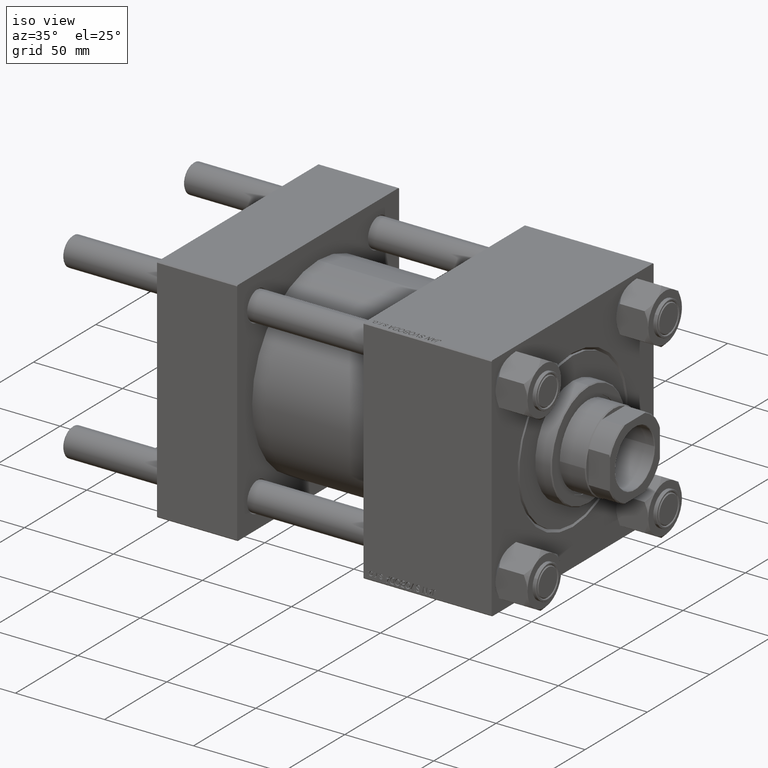
[diagram: clean part render]
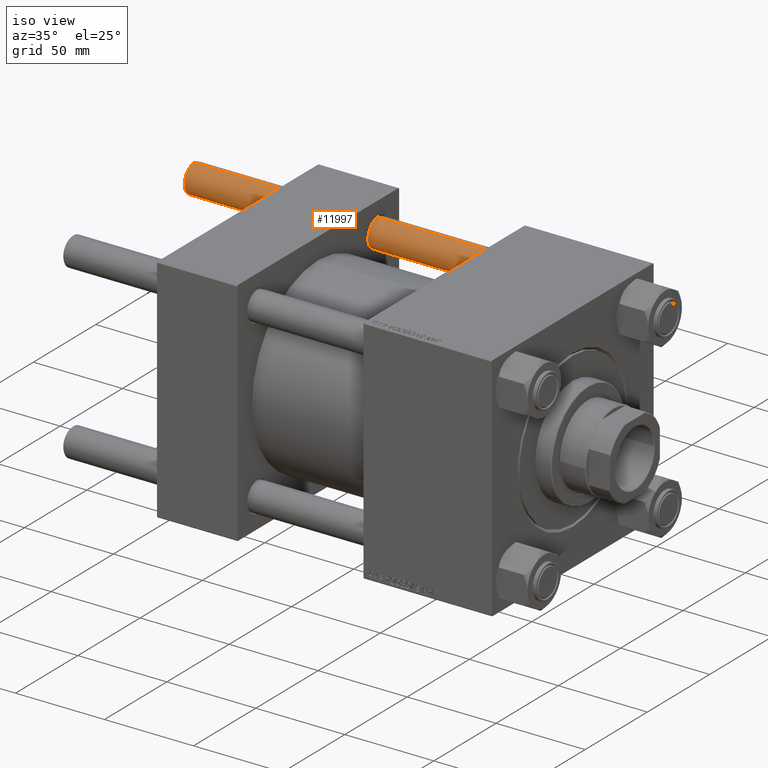
[diagram: same view with one face highlighted and labeled with its STEP entity id]
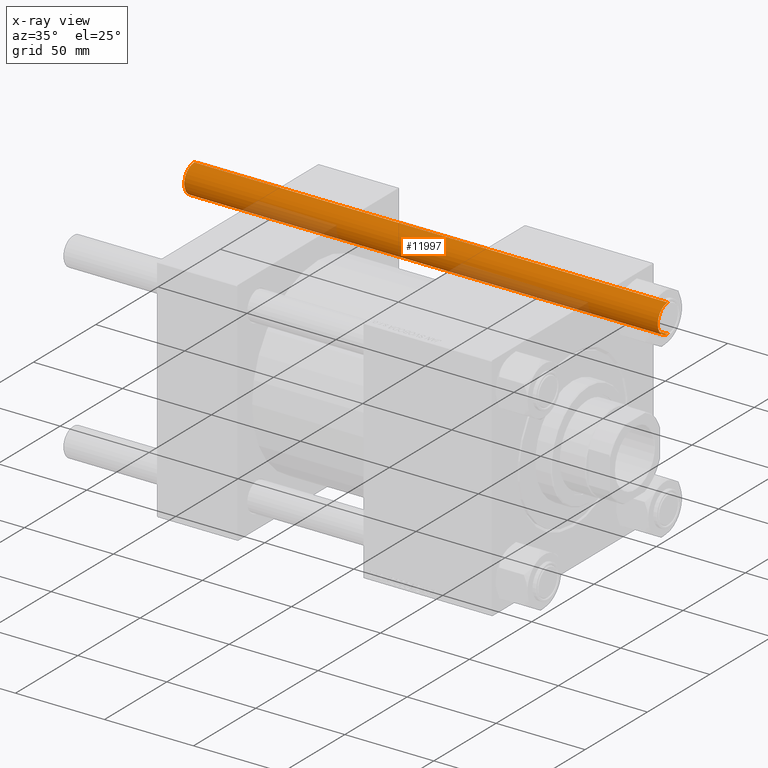
[diagram: x-ray of the same camera — body ghosted, the highlighted face saturated]
A machine part, iso view. The second image highlights one B-rep face of the part: STEP entity #11997.
The next image is the same camera in x-ray: the body ghosted, the highlighted face saturated — about 17% of this face is hidden behind the body in this view.
In plain terms, the highlighted cylindrical surface (edge-blend (fillet) strip) has radius 8 mm, axis along (-1, -0, -0).
Its self-contained STEP definition (entity closure, byte-faithful):
#2750 = CARTESIAN_POINT ( 'NONE',  ( -8.000000000000000000, 0.000000000000000000, 267.0000000000000000 ) ) ;
#3634 = DIRECTION ( 'NONE',  ( -0.000000000000000000, -0.000000000000000000, -1.000000000000000000 ) ) ;
#10042 = ORIENTED_EDGE ( 'NONE', *, *, #39330, .F. ) ;
#10724 = CARTESIAN_POINT ( 'NONE',  ( -8.000000000000000000, 0.000000000000000000, 266.5000000000000568 ) ) ;
#11997 = ADVANCED_FACE ( 'NONE', ( #15841 ), #38499, .T. ) ;
#15232 = AXIS2_PLACEMENT_3D ( 'NONE', #27300, #3634, #23750 ) ;
#15410 = ORIENTED_EDGE ( 'NONE', *, *, #41482, .T. ) ;
#15445 = CARTESIAN_POINT ( 'NONE',  ( 8.000000000000000000, 9.797174393178825657E-16, 267.0000000000000000 ) ) ;
#15841 = FACE_OUTER_BOUND ( 'NONE', #27296, .T. ) ;
#16018 = ORIENTED_EDGE ( 'NONE', *, *, #30583, .T. ) ;
#19313 = VERTEX_POINT ( 'NONE', #10724 ) ;
#22716 = CARTESIAN_POINT ( 'NONE',  ( 8.000000000000000000, 9.797174393178825657E-16, 0.5000000000000559552 ) ) ;
#22790 = EDGE_CURVE ( 'NONE', #26635, #19313, #35840, .T. ) ;
#22859 = LINE ( 'NONE', #15445, #46748 ) ;
#23750 = DIRECTION ( 'NONE',  ( -1.000000000000000000, 0.000000000000000000, 0.000000000000000000 ) ) ;
#24073 = CIRCLE ( 'NONE', #32173, 8.000000000000000000 ) ;
#26635 = VERTEX_POINT ( 'NONE', #35941 ) ;
#27296 = EDGE_LOOP ( 'NONE', ( #10042, #37780, #16018, #15410 ) ) ;
#27300 = CARTESIAN_POINT ( 'NONE',  ( 0.000000000000000000, 0.000000000000000000, 267.0000000000000000 ) ) ;
#30583 = EDGE_CURVE ( 'NONE', #19313, #37073, #41932, .T. ) ;
#32173 = AXIS2_PLACEMENT_3D ( 'NONE', #48936, #33948, #32935 ) ;
#32935 = DIRECTION ( 'NONE',  ( 1.000000000000000000, 0.000000000000000000, 0.000000000000000000 ) ) ;
#33948 = DIRECTION ( 'NONE',  ( -0.000000000000000000, -0.000000000000000000, 1.000000000000000000 ) ) ;
#34354 = VERTEX_POINT ( 'NONE', #22716 ) ;
#35840 = CIRCLE ( 'NONE', #43925, 8.000000000000000000 ) ;
#35941 = CARTESIAN_POINT ( 'NONE',  ( 8.000000000000000000, 9.797174393178825657E-16, 266.5000000000000568 ) ) ;
#36987 = CARTESIAN_POINT ( 'NONE',  ( 0.000000000000000000, 0.000000000000000000, 266.5000000000000568 ) ) ;
#37073 = VERTEX_POINT ( 'NONE', #41404 ) ;
#37780 = ORIENTED_EDGE ( 'NONE', *, *, #22790, .T. ) ;
#37864 = DIRECTION ( 'NONE',  ( -0.000000000000000000, -0.000000000000000000, -1.000000000000000000 ) ) ;
#38499 = CYLINDRICAL_SURFACE ( 'NONE', #15232, 8.000000000000000000 ) ;
#39330 = EDGE_CURVE ( 'NONE', #26635, #34354, #22859, .T. ) ;
#41404 = CARTESIAN_POINT ( 'NONE',  ( -8.000000000000000000, 0.000000000000000000, 0.5000000000000559552 ) ) ;
#41482 = EDGE_CURVE ( 'NONE', #37073, #34354, #24073, .T. ) ;
#41797 = DIRECTION ( 'NONE',  ( 1.000000000000000000, 0.000000000000000000, 0.000000000000000000 ) ) ;
#41932 = LINE ( 'NONE', #2750, #42404 ) ;
#42404 = VECTOR ( 'NONE', #37864, 1000.000000000000000 ) ;
#42422 = DIRECTION ( 'NONE',  ( -0.000000000000000000, -0.000000000000000000, -1.000000000000000000 ) ) ;
#43925 = AXIS2_PLACEMENT_3D ( 'NONE', #36987, #45124, #41797 ) ;
#45124 = DIRECTION ( 'NONE',  ( 0.000000000000000000, 0.000000000000000000, -1.000000000000000000 ) ) ;
#46748 = VECTOR ( 'NONE', #42422, 1000.000000000000000 ) ;
#48936 = CARTESIAN_POINT ( 'NONE',  ( 0.000000000000000000, 0.000000000000000000, 0.5000000000000559552 ) ) ;